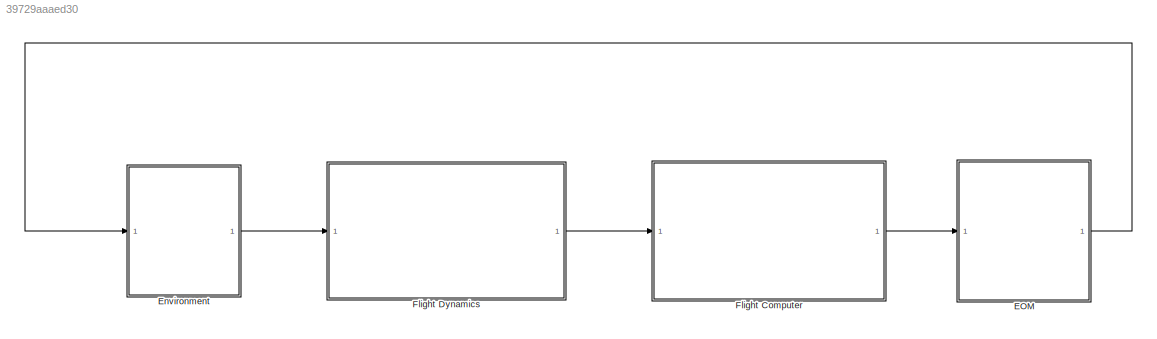
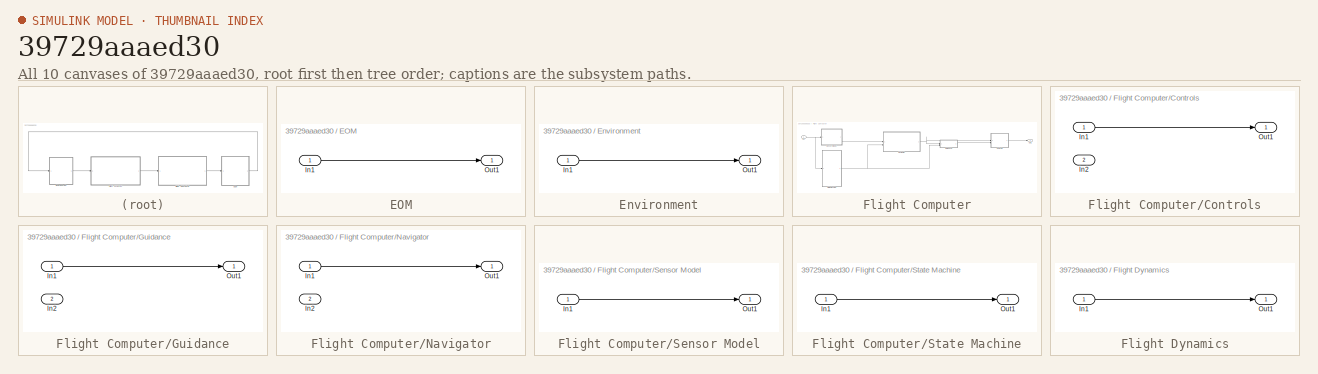
[diagram: thumbnail index - all 10 canvases of the model, root first then tree order]
MODEL slx_39729aaaed30
KIND model
CONFIG AbsTol = auto
CONFIG EnableMultiTasking = off
CONFIG FixedStep = auto
CONFIG MaxStep = auto
CONFIG MinStep = auto
CONFIG RelTol = 1e-3
CONFIG SampleTimeConstraint = Unconstrained
CONFIG SolverName = VariableStepAuto
CONFIG StartTime = 0.0
CONFIG StopTime = 10.0
BLOCK [SubSystem] EOM
BLOCK [Inport] EOM/In1
BLOCK [Outport] EOM/Out1
BLOCK [SubSystem] Environment
BLOCK [Inport] Environment/In1
BLOCK [Outport] Environment/Out1
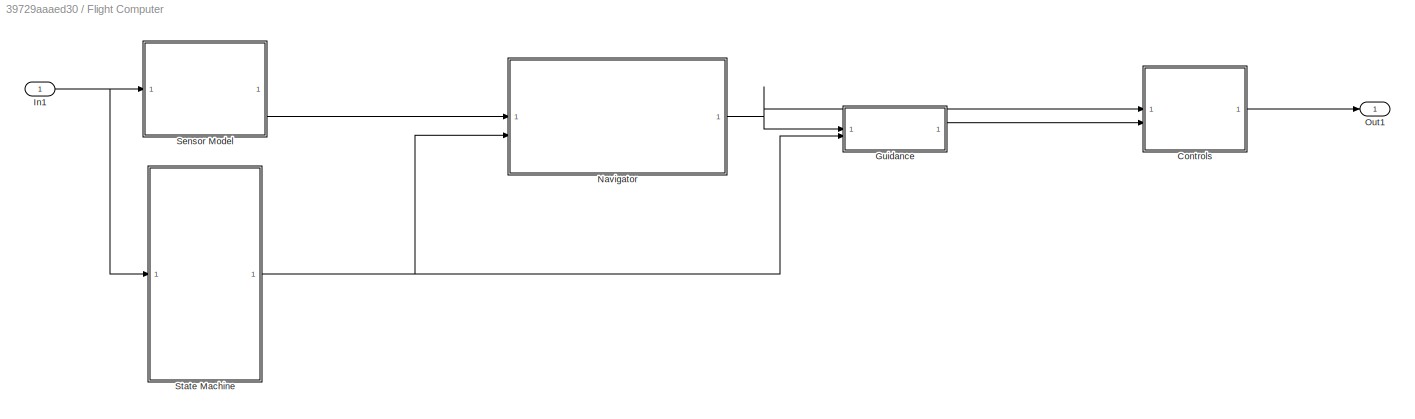
BLOCK [SubSystem] Flight Computer
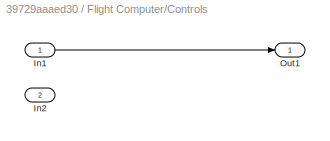
BLOCK [SubSystem] Flight Computer/Controls
BLOCK [Inport] Flight Computer/Controls/In1
BLOCK [Inport] Flight Computer/Controls/In2
  Port = 2
BLOCK [Outport] Flight Computer/Controls/Out1
BLOCK [SubSystem] Flight Computer/Guidance
BLOCK [Inport] Flight Computer/Guidance/In1
BLOCK [Inport] Flight Computer/Guidance/In2
  Port = 2
BLOCK [Outport] Flight Computer/Guidance/Out1
BLOCK [Inport] Flight Computer/In1
BLOCK [SubSystem] Flight Computer/Navigator
BLOCK [Inport] Flight Computer/Navigator/In1
BLOCK [Inport] Flight Computer/Navigator/In2
  Port = 2
BLOCK [Outport] Flight Computer/Navigator/Out1
BLOCK [Outport] Flight Computer/Out1
BLOCK [SubSystem] Flight Computer/Sensor Model
BLOCK [Inport] Flight Computer/Sensor Model/In1
BLOCK [Outport] Flight Computer/Sensor Model/Out1
BLOCK [SubSystem] Flight Computer/State Machine
BLOCK [Inport] Flight Computer/State Machine/In1
BLOCK [Outport] Flight Computer/State Machine/Out1
BLOCK [SubSystem] Flight Dynamics
BLOCK [Inport] Flight Dynamics/In1
BLOCK [Outport] Flight Dynamics/Out1
LINE EOM/In1:1 -> EOM/Out1:1
LINE EOM:1 -> Environment:1
LINE Environment/In1:1 -> Environment/Out1:1
LINE Environment:1 -> Flight Dynamics:1
LINE Flight Computer/Controls/In1:1 -> Flight Computer/Controls/Out1:1
LINE Flight Computer/Controls:1 -> Flight Computer/Out1:1
LINE Flight Computer/Guidance/In1:1 -> Flight Computer/Guidance/Out1:1
LINE Flight Computer/Guidance:1 -> Flight Computer/Controls:2
NET Flight Computer/In1:1 -> Flight Computer/Sensor Model:1, Flight Computer/State Machine:1
LINE Flight Computer/Navigator/In1:1 -> Flight Computer/Navigator/Out1:1
NET Flight Computer/Navigator:1 -> Flight Computer/Controls:1, Flight Computer/Guidance:1
LINE Flight Computer/Sensor Model/In1:1 -> Flight Computer/Sensor Model/Out1:1
LINE Flight Computer/Sensor Model:1 -> Flight Computer/Navigator:1
LINE Flight Computer/State Machine/In1:1 -> Flight Computer/State Machine/Out1:1
NET Flight Computer/State Machine:1 -> Flight Computer/Guidance:2, Flight Computer/Navigator:2
LINE Flight Computer:1 -> EOM:1
LINE Flight Dynamics/In1:1 -> Flight Dynamics/Out1:1
LINE Flight Dynamics:1 -> Flight Computer:1
note: NET lines group one-source signal fan-out (src -> all destinations, sorted); 1:1 wires keep LINE
